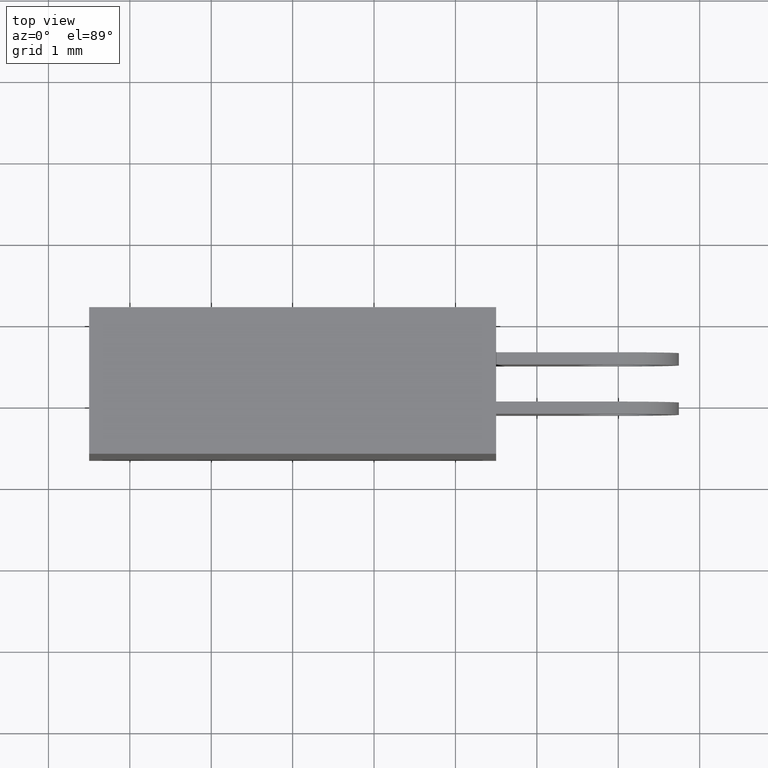
[diagram: clean part render]
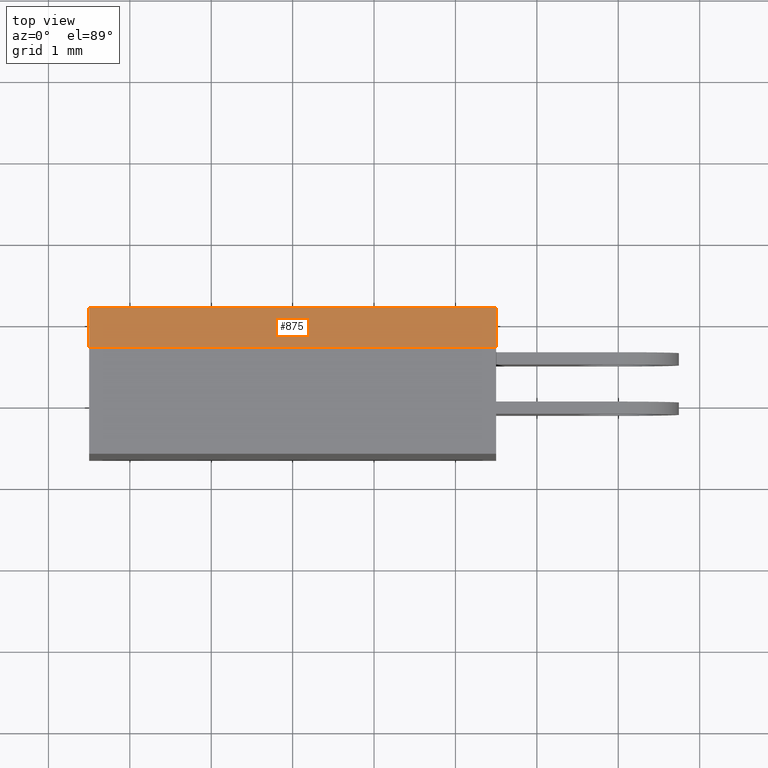
[diagram: same view with one face highlighted and labeled with its STEP entity id]
A machine part, top view. The second image highlights one B-rep face of the part: STEP entity #875.
In plain terms, the highlighted planar face has unit normal (0, 0, -1).
Its self-contained STEP definition (entity closure, byte-faithful):
#1 = DIRECTION ( 'NONE',  ( -0.0000000000000000000, -1.000000000000000000, -0.0000000000000000000 ) ) ;
#2 = LINE ( 'NONE', #834, #536 ) ;
#30 = VECTOR ( 'NONE', #131, 1000.000000000000000 ) ;
#34 = CARTESIAN_POINT ( 'NONE',  ( -2.499999999999999600, 1.151000000000000000, 2.500000000000000000 ) ) ;
#54 = CARTESIAN_POINT ( 'NONE',  ( 2.499999999999999600, 1.151000000000000000, 2.500000000000000000 ) ) ;
#61 = LINE ( 'NONE', #526, #30 ) ;
#98 = CARTESIAN_POINT ( 'NONE',  ( -2.499999999999999600, 1.151000000000000000, 2.500000000000000000 ) ) ;
#131 = DIRECTION ( 'NONE',  ( 1.000000000000000000, 0.0000000000000000000, 0.0000000000000000000 ) ) ;
#173 = CARTESIAN_POINT ( 'NONE',  ( -2.499999999999999600, 1.151000000000000000, 2.500000000000000000 ) ) ;
#183 = CARTESIAN_POINT ( 'NONE',  ( 2.499999999999999600, 1.151000000000000000, 2.500000000000000000 ) ) ;
#245 = CARTESIAN_POINT ( 'NONE',  ( 2.499999999999999600, 0.6510000000000000200, 2.500000000000000000 ) ) ;
#331 = EDGE_CURVE ( 'NONE', #548, #709, #1223, .T. ) ;
#345 = ORIENTED_EDGE ( 'NONE', *, *, #1331, .T. ) ;
#353 = DIRECTION ( 'NONE',  ( 0.0000000000000000000, 0.0000000000000000000, -1.000000000000000000 ) ) ;
#361 = VECTOR ( 'NONE', #716, 1000.000000000000000 ) ;
#382 = EDGE_CURVE ( 'NONE', #709, #1319, #627, .T. ) ;
#480 = CARTESIAN_POINT ( 'NONE',  ( -2.499999999999999600, 0.6510000000000000200, 2.500000000000000000 ) ) ;
#505 = ORIENTED_EDGE ( 'NONE', *, *, #331, .F. ) ;
#526 = CARTESIAN_POINT ( 'NONE',  ( -2.499999999999999600, 0.6510000000000000200, 2.500000000000000000 ) ) ;
#536 = VECTOR ( 'NONE', #1, 1000.000000000000000 ) ;
#548 = VERTEX_POINT ( 'NONE', #173 ) ;
#621 = ORIENTED_EDGE ( 'NONE', *, *, #382, .F. ) ;
#623 = EDGE_CURVE ( 'NONE', #548, #715, #2, .T. ) ;
#627 = LINE ( 'NONE', #183, #361 ) ;
#653 = PLANE ( 'NONE',  #778 ) ;
#709 = VERTEX_POINT ( 'NONE', #54 ) ;
#713 = DIRECTION ( 'NONE',  ( 1.000000000000000000, 0.0000000000000000000, 0.0000000000000000000 ) ) ;
#715 = VERTEX_POINT ( 'NONE', #480 ) ;
#716 = DIRECTION ( 'NONE',  ( -0.0000000000000000000, -1.000000000000000000, -0.0000000000000000000 ) ) ;
#778 = AXIS2_PLACEMENT_3D ( 'NONE', #34, #353, #960 ) ;
#834 = CARTESIAN_POINT ( 'NONE',  ( -2.499999999999999600, 1.151000000000000000, 2.500000000000000000 ) ) ;
#848 = FACE_OUTER_BOUND ( 'NONE', #1167, .T. ) ;
#875 = ADVANCED_FACE ( 'NONE', ( #848 ), #653, .F. ) ;
#960 = DIRECTION ( 'NONE',  ( -1.000000000000000000, 0.0000000000000000000, -0.0000000000000000000 ) ) ;
#965 = VECTOR ( 'NONE', #713, 1000.000000000000000 ) ;
#1167 = EDGE_LOOP ( 'NONE', ( #345, #621, #505, #1335 ) ) ;
#1223 = LINE ( 'NONE', #98, #965 ) ;
#1319 = VERTEX_POINT ( 'NONE', #245 ) ;
#1331 = EDGE_CURVE ( 'NONE', #715, #1319, #61, .T. ) ;
#1335 = ORIENTED_EDGE ( 'NONE', *, *, #623, .T. ) ;